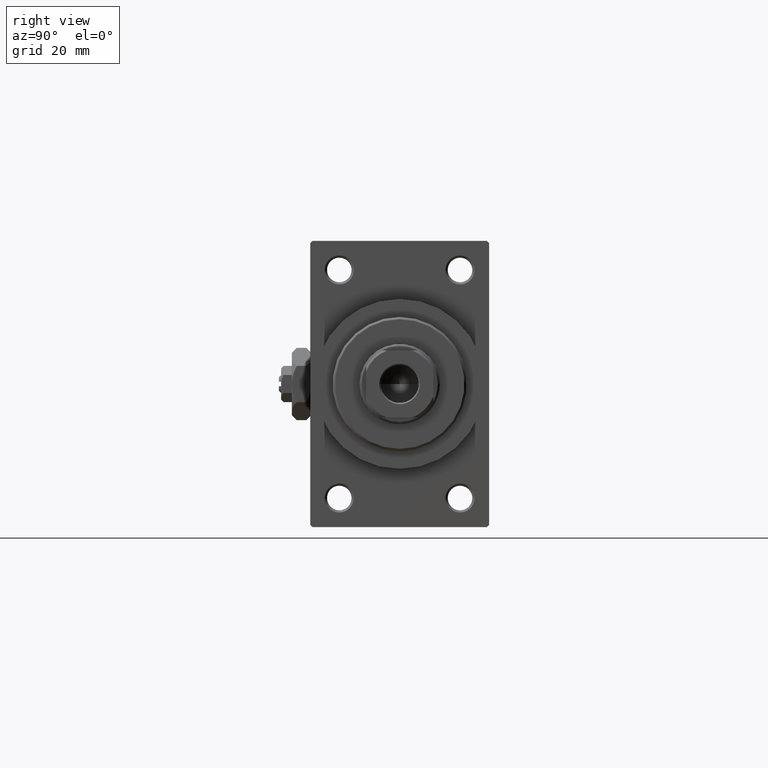
[diagram: clean part render]
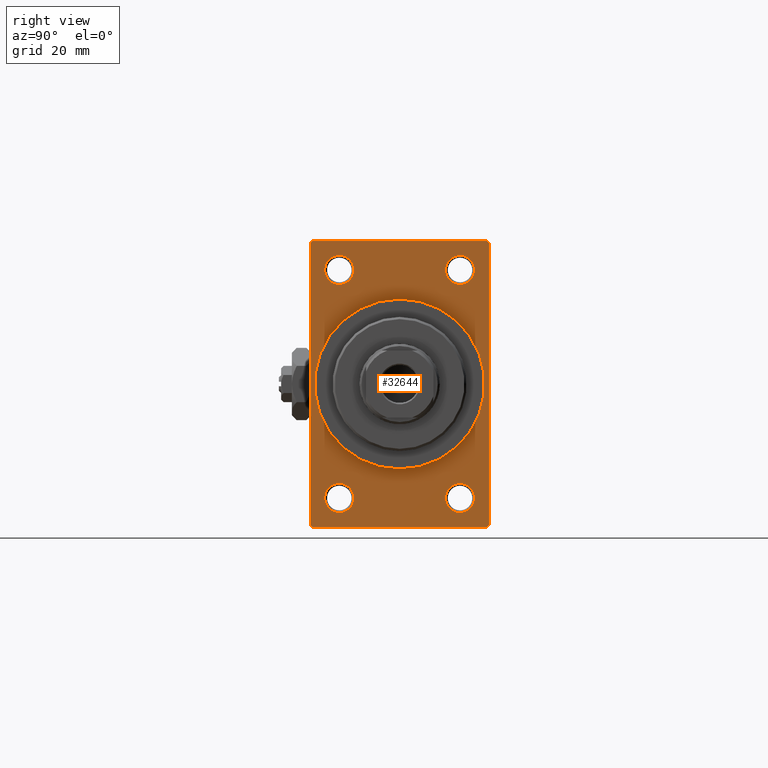
[diagram: same view with one face highlighted and labeled with its STEP entity id]
A machine part, right view. The second image highlights one B-rep face of the part: STEP entity #32644.
In plain terms, the highlighted planar face has unit normal (-1, 0, 0).
Its self-contained STEP definition (entity closure, byte-faithful):
#231 = VERTEX_POINT ( 'NONE', #1908 ) ;
#245 = EDGE_LOOP ( 'NONE', ( #6519, #16043 ) ) ;
#514 = VERTEX_POINT ( 'NONE', #22770 ) ;
#1908 = CARTESIAN_POINT ( 'NONE',  ( 110.0000000000000142, -13.50000000000000178, 28.75000000000001776 ) ) ;
#1947 = CIRCLE ( 'NONE', #15298, 3.250000000000016875 ) ;
#2046 = DIRECTION ( 'NONE',  ( 0.000000000000000000, 0.000000000000000000, -1.000000000000000000 ) ) ;
#2392 = FACE_BOUND ( 'NONE', #21859, .T. ) ;
#2539 = EDGE_CURVE ( 'NONE', #37560, #28028, #23397, .T. ) ;
#2851 = EDGE_CURVE ( 'NONE', #43017, #7897, #36192, .T. ) ;
#3000 = CARTESIAN_POINT ( 'NONE',  ( 110.0000000000000142, 0.000000000000000000, 0.000000000000000000 ) ) ;
#3030 = ORIENTED_EDGE ( 'NONE', *, *, #10251, .F. ) ;
#3662 = VECTOR ( 'NONE', #18837, 1000.000000000000000 ) ;
#3680 = LINE ( 'NONE', #33956, #43767 ) ;
#3965 = CIRCLE ( 'NONE', #29127, 19.00000000000000000 ) ;
#4322 = LINE ( 'NONE', #33860, #3662 ) ;
#5316 = DIRECTION ( 'NONE',  ( 0.000000000000000000, 0.000000000000000000, 1.000000000000000000 ) ) ;
#5517 = EDGE_CURVE ( 'NONE', #37560, #47265, #31719, .T. ) ;
#5570 = AXIS2_PLACEMENT_3D ( 'NONE', #13118, #38984, #32088 ) ;
#5633 = ORIENTED_EDGE ( 'NONE', *, *, #11088, .T. ) ;
#5762 = CIRCLE ( 'NONE', #34821, 3.250000000000016875 ) ;
#5841 = DIRECTION ( 'NONE',  ( -1.000000000000000000, 0.000000000000000000, -0.000000000000000000 ) ) ;
#6111 = CARTESIAN_POINT ( 'NONE',  ( 110.0000000000000142, 13.49999999999999822, 25.50000000000000355 ) ) ;
#6434 = VECTOR ( 'NONE', #32447, 1000.000000000000114 ) ;
#6519 = ORIENTED_EDGE ( 'NONE', *, *, #23527, .T. ) ;
#7897 = VERTEX_POINT ( 'NONE', #36115 ) ;
#7944 = CARTESIAN_POINT ( 'NONE',  ( 110.0000000000000142, 20.00000000000000000, 31.50000000000000000 ) ) ;
#8272 = CARTESIAN_POINT ( 'NONE',  ( 110.0000000000000142, 20.00000000000000000, 32.00000000000000000 ) ) ;
#9033 = FACE_OUTER_BOUND ( 'NONE', #16469, .T. ) ;
#9072 = ORIENTED_EDGE ( 'NONE', *, *, #39389, .T. ) ;
#9545 = DIRECTION ( 'NONE',  ( 0.000000000000000000, 0.000000000000000000, 1.000000000000000000 ) ) ;
#9916 = CARTESIAN_POINT ( 'NONE',  ( 110.0000000000000142, -13.50000000000000533, -25.49999999999999645 ) ) ;
#10221 = CARTESIAN_POINT ( 'NONE',  ( 110.0000000000000142, -13.50000000000000178, 25.50000000000000355 ) ) ;
#10251 = EDGE_CURVE ( 'NONE', #47014, #44035, #3680, .T. ) ;
#10630 = EDGE_CURVE ( 'NONE', #47265, #26166, #45241, .T. ) ;
#10746 = LINE ( 'NONE', #40542, #26668 ) ;
#10807 = CARTESIAN_POINT ( 'NONE',  ( 110.0000000000000142, -20.00000000000000000, 31.99999999999999289 ) ) ;
#10987 = DIRECTION ( 'NONE',  ( -0.000000000000000000, -0.7071067811865474617, -0.7071067811865474617 ) ) ;
#11045 = VECTOR ( 'NONE', #31291, 1000.000000000000000 ) ;
#11088 = EDGE_CURVE ( 'NONE', #47014, #28028, #30874, .T. ) ;
#11251 = AXIS2_PLACEMENT_3D ( 'NONE', #9916, #36486, #25402 ) ;
#11423 = AXIS2_PLACEMENT_3D ( 'NONE', #10221, #24506, #24256 ) ;
#11728 = CARTESIAN_POINT ( 'NONE',  ( 110.0000000000000142, 13.49999999999999822, -25.50000000000000000 ) ) ;
#12033 = DIRECTION ( 'NONE',  ( 0.000000000000000000, -1.000000000000000000, 0.000000000000000000 ) ) ;
#12535 = EDGE_LOOP ( 'NONE', ( #33615, #18592 ) ) ;
#12733 = ORIENTED_EDGE ( 'NONE', *, *, #10630, .T. ) ;
#13118 = CARTESIAN_POINT ( 'NONE',  ( 110.0000000000000142, 13.49999999999999822, -25.50000000000000000 ) ) ;
#13221 = FACE_BOUND ( 'NONE', #12535, .T. ) ;
#13295 = AXIS2_PLACEMENT_3D ( 'NONE', #18986, #26378, #30329 ) ;
#13679 = VERTEX_POINT ( 'NONE', #17061 ) ;
#15298 = AXIS2_PLACEMENT_3D ( 'NONE', #25025, #16688, #9545 ) ;
#15730 = VECTOR ( 'NONE', #32963, 1000.000000000000000 ) ;
#16043 = ORIENTED_EDGE ( 'NONE', *, *, #18728, .T. ) ;
#16431 = CIRCLE ( 'NONE', #34529, 3.249999999999975131 ) ;
#16469 = EDGE_LOOP ( 'NONE', ( #33193, #36794, #3030, #5633, #36542, #24133, #12733, #45152 ) ) ;
#16688 = DIRECTION ( 'NONE',  ( -1.000000000000000000, -0.000000000000000000, -0.000000000000000000 ) ) ;
#16891 = CARTESIAN_POINT ( 'NONE',  ( 110.0000000000000142, 13.49999999999999822, 25.50000000000000355 ) ) ;
#16940 = CIRCLE ( 'NONE', #11423, 3.250000000000016875 ) ;
#17061 = CARTESIAN_POINT ( 'NONE',  ( 110.0000000000000142, -13.50000000000000533, -28.75000000000001066 ) ) ;
#17401 = FACE_BOUND ( 'NONE', #43904, .T. ) ;
#17422 = CARTESIAN_POINT ( 'NONE',  ( 110.0000000000000142, 19.50000000000000000, 32.00000000000000000 ) ) ;
#18101 = ORIENTED_EDGE ( 'NONE', *, *, #32256, .T. ) ;
#18592 = ORIENTED_EDGE ( 'NONE', *, *, #44732, .T. ) ;
#18728 = EDGE_CURVE ( 'NONE', #514, #32941, #16431, .T. ) ;
#18837 = DIRECTION ( 'NONE',  ( 0.000000000000000000, 0.7071067811865524577, -0.7071067811865426878 ) ) ;
#18914 = EDGE_CURVE ( 'NONE', #26166, #31548, #10746, .T. ) ;
#18986 = CARTESIAN_POINT ( 'NONE',  ( 110.0000000000000142, 0.000000000000000000, 0.000000000000000000 ) ) ;
#19199 = EDGE_CURVE ( 'NONE', #31856, #25236, #42417, .T. ) ;
#19214 = CARTESIAN_POINT ( 'NONE',  ( 110.0000000000000142, -13.50000000000000533, -25.49999999999999645 ) ) ;
#19427 = VECTOR ( 'NONE', #23274, 1000.000000000000000 ) ;
#20573 = VERTEX_POINT ( 'NONE', #41733 ) ;
#20844 = PLANE ( 'NONE',  #22280 ) ;
#21352 = DIRECTION ( 'NONE',  ( 0.000000000000000000, 0.000000000000000000, 1.000000000000000000 ) ) ;
#21452 = DIRECTION ( 'NONE',  ( 1.000000000000000000, 0.000000000000000000, 0.000000000000000000 ) ) ;
#21859 = EDGE_LOOP ( 'NONE', ( #9072, #18101 ) ) ;
#22280 = AXIS2_PLACEMENT_3D ( 'NONE', #39578, #5841, #28740 ) ;
#22746 = EDGE_CURVE ( 'NONE', #25236, #31856, #3965, .T. ) ;
#22770 = CARTESIAN_POINT ( 'NONE',  ( 110.0000000000000142, 13.49999999999999822, -22.25000000000002487 ) ) ;
#23274 = DIRECTION ( 'NONE',  ( 0.000000000000000000, -1.000000000000000000, -1.734723475976807094E-16 ) ) ;
#23397 = LINE ( 'NONE', #31051, #11045 ) ;
#23527 = EDGE_CURVE ( 'NONE', #32941, #514, #32320, .T. ) ;
#24133 = ORIENTED_EDGE ( 'NONE', *, *, #5517, .T. ) ;
#24256 = DIRECTION ( 'NONE',  ( 0.000000000000000000, 0.000000000000000000, 1.000000000000000000 ) ) ;
#24506 = DIRECTION ( 'NONE',  ( -1.000000000000000000, -0.000000000000000000, -0.000000000000000000 ) ) ;
#24803 = DIRECTION ( 'NONE',  ( -1.000000000000000000, -0.000000000000000000, -0.000000000000000000 ) ) ;
#25025 = CARTESIAN_POINT ( 'NONE',  ( 110.0000000000000142, -13.50000000000000178, 25.50000000000000355 ) ) ;
#25065 = EDGE_CURVE ( 'NONE', #31548, #47972, #40606, .T. ) ;
#25214 = CARTESIAN_POINT ( 'NONE',  ( 110.0000000000000142, -19.50000000000000000, -32.00000000000000000 ) ) ;
#25232 = EDGE_LOOP ( 'NONE', ( #34258, #29608 ) ) ;
#25236 = VERTEX_POINT ( 'NONE', #43947 ) ;
#25402 = DIRECTION ( 'NONE',  ( 0.000000000000000000, 0.000000000000000000, 1.000000000000000000 ) ) ;
#26055 = ORIENTED_EDGE ( 'NONE', *, *, #22746, .F. ) ;
#26166 = VERTEX_POINT ( 'NONE', #35881 ) ;
#26378 = DIRECTION ( 'NONE',  ( 1.000000000000000000, 0.000000000000000000, 0.000000000000000000 ) ) ;
#26668 = VECTOR ( 'NONE', #10987, 1000.000000000000114 ) ;
#27407 = CARTESIAN_POINT ( 'NONE',  ( 110.0000000000000142, 20.00000000000000000, -31.50000000000001421 ) ) ;
#27758 = FACE_BOUND ( 'NONE', #25232, .T. ) ;
#28028 = VERTEX_POINT ( 'NONE', #43992 ) ;
#28242 = VERTEX_POINT ( 'NONE', #31871 ) ;
#28252 = FACE_BOUND ( 'NONE', #245, .T. ) ;
#28740 = DIRECTION ( 'NONE',  ( -0.000000000000000000, 0.000000000000000000, 1.000000000000000000 ) ) ;
#29127 = AXIS2_PLACEMENT_3D ( 'NONE', #3000, #21452, #2046 ) ;
#29608 = ORIENTED_EDGE ( 'NONE', *, *, #2851, .T. ) ;
#30247 = CARTESIAN_POINT ( 'NONE',  ( 110.0000000000000142, 19.50000000000000000, 32.00000000000000000 ) ) ;
#30329 = DIRECTION ( 'NONE',  ( 0.000000000000000000, 0.000000000000000000, -1.000000000000000000 ) ) ;
#30423 = CARTESIAN_POINT ( 'NONE',  ( 110.0000000000000142, -20.00000000000000000, 31.49999999999997868 ) ) ;
#30874 = LINE ( 'NONE', #27407, #32020 ) ;
#31051 = CARTESIAN_POINT ( 'NONE',  ( 110.0000000000000142, 20.00000000000000000, 32.00000000000000000 ) ) ;
#31291 = DIRECTION ( 'NONE',  ( 0.000000000000000000, 0.000000000000000000, -1.000000000000000000 ) ) ;
#31548 = VERTEX_POINT ( 'NONE', #30423 ) ;
#31719 = LINE ( 'NONE', #17422, #6434 ) ;
#31856 = VERTEX_POINT ( 'NONE', #42170 ) ;
#31871 = CARTESIAN_POINT ( 'NONE',  ( 110.0000000000000142, -13.50000000000000533, -22.24999999999997868 ) ) ;
#32020 = VECTOR ( 'NONE', #46146, 1000.000000000000114 ) ;
#32088 = DIRECTION ( 'NONE',  ( 0.000000000000000000, 0.000000000000000000, 1.000000000000000000 ) ) ;
#32256 = EDGE_CURVE ( 'NONE', #28242, #13679, #35612, .T. ) ;
#32320 = CIRCLE ( 'NONE', #5570, 3.249999999999975131 ) ;
#32447 = DIRECTION ( 'NONE',  ( 0.000000000000000000, -0.7071067811865474617, 0.7071067811865474617 ) ) ;
#32644 = ADVANCED_FACE ( 'NONE', ( #13221, #2392, #28252, #27758, #17401, #9033 ), #20844, .F. ) ;
#32941 = VERTEX_POINT ( 'NONE', #45361 ) ;
#32963 = DIRECTION ( 'NONE',  ( 0.000000000000000000, 0.000000000000000000, -1.000000000000000000 ) ) ;
#33193 = ORIENTED_EDGE ( 'NONE', *, *, #25065, .T. ) ;
#33615 = ORIENTED_EDGE ( 'NONE', *, *, #42831, .T. ) ;
#33860 = CARTESIAN_POINT ( 'NONE',  ( 110.0000000000000142, -19.50000000000000000, -32.00000000000000000 ) ) ;
#33956 = CARTESIAN_POINT ( 'NONE',  ( 110.0000000000000142, 20.00000000000000000, -32.00000000000000000 ) ) ;
#34240 = DIRECTION ( 'NONE',  ( -1.000000000000000000, -0.000000000000000000, -0.000000000000000000 ) ) ;
#34258 = ORIENTED_EDGE ( 'NONE', *, *, #39732, .T. ) ;
#34529 = AXIS2_PLACEMENT_3D ( 'NONE', #11728, #38966, #42678 ) ;
#34821 = AXIS2_PLACEMENT_3D ( 'NONE', #16891, #39058, #5316 ) ;
#35064 = ORIENTED_EDGE ( 'NONE', *, *, #19199, .F. ) ;
#35612 = CIRCLE ( 'NONE', #41928, 3.250000000000016875 ) ;
#35626 = CIRCLE ( 'NONE', #11251, 3.250000000000016875 ) ;
#35881 = CARTESIAN_POINT ( 'NONE',  ( 110.0000000000000142, -19.49999999999998579, 31.99999999999999289 ) ) ;
#36115 = CARTESIAN_POINT ( 'NONE',  ( 110.0000000000000142, 13.49999999999999822, 22.24999999999998934 ) ) ;
#36192 = CIRCLE ( 'NONE', #42511, 3.250000000000016875 ) ;
#36486 = DIRECTION ( 'NONE',  ( -1.000000000000000000, -0.000000000000000000, -0.000000000000000000 ) ) ;
#36542 = ORIENTED_EDGE ( 'NONE', *, *, #2539, .F. ) ;
#36794 = ORIENTED_EDGE ( 'NONE', *, *, #47695, .T. ) ;
#37560 = VERTEX_POINT ( 'NONE', #7944 ) ;
#38409 = CARTESIAN_POINT ( 'NONE',  ( 110.0000000000000142, 19.50000000000001421, -32.00000000000000000 ) ) ;
#38966 = DIRECTION ( 'NONE',  ( -1.000000000000000000, -0.000000000000000000, -0.000000000000000000 ) ) ;
#38984 = DIRECTION ( 'NONE',  ( -1.000000000000000000, -0.000000000000000000, -0.000000000000000000 ) ) ;
#39058 = DIRECTION ( 'NONE',  ( -1.000000000000000000, -0.000000000000000000, -0.000000000000000000 ) ) ;
#39389 = EDGE_CURVE ( 'NONE', #13679, #28242, #35626, .T. ) ;
#39578 = CARTESIAN_POINT ( 'NONE',  ( 110.0000000000000142, 0.000000000000000000, 0.000000000000000000 ) ) ;
#39732 = EDGE_CURVE ( 'NONE', #7897, #43017, #5762, .T. ) ;
#39947 = CARTESIAN_POINT ( 'NONE',  ( 110.0000000000000142, 13.49999999999999822, 28.75000000000002132 ) ) ;
#40542 = CARTESIAN_POINT ( 'NONE',  ( 110.0000000000000142, -20.00000000000000000, 31.49999999999997868 ) ) ;
#40606 = LINE ( 'NONE', #10807, #15730 ) ;
#41733 = CARTESIAN_POINT ( 'NONE',  ( 110.0000000000000142, -13.50000000000000178, 22.24999999999998579 ) ) ;
#41928 = AXIS2_PLACEMENT_3D ( 'NONE', #19214, #34240, #45354 ) ;
#42170 = CARTESIAN_POINT ( 'NONE',  ( 110.0000000000000142, 2.326828918379970970E-15, -19.00000000000000000 ) ) ;
#42417 = CIRCLE ( 'NONE', #13295, 19.00000000000000000 ) ;
#42511 = AXIS2_PLACEMENT_3D ( 'NONE', #6111, #24803, #21352 ) ;
#42678 = DIRECTION ( 'NONE',  ( 0.000000000000000000, 0.000000000000000000, 1.000000000000000000 ) ) ;
#42831 = EDGE_CURVE ( 'NONE', #20573, #231, #1947, .T. ) ;
#43017 = VERTEX_POINT ( 'NONE', #39947 ) ;
#43767 = VECTOR ( 'NONE', #12033, 1000.000000000000000 ) ;
#43904 = EDGE_LOOP ( 'NONE', ( #26055, #35064 ) ) ;
#43947 = CARTESIAN_POINT ( 'NONE',  ( 110.0000000000000142, 0.000000000000000000, 19.00000000000000000 ) ) ;
#43992 = CARTESIAN_POINT ( 'NONE',  ( 110.0000000000000142, 20.00000000000000000, -31.50000000000001421 ) ) ;
#44035 = VERTEX_POINT ( 'NONE', #25214 ) ;
#44732 = EDGE_CURVE ( 'NONE', #231, #20573, #16940, .T. ) ;
#45152 = ORIENTED_EDGE ( 'NONE', *, *, #18914, .T. ) ;
#45241 = LINE ( 'NONE', #8272, #19427 ) ;
#45354 = DIRECTION ( 'NONE',  ( 0.000000000000000000, 0.000000000000000000, 1.000000000000000000 ) ) ;
#45361 = CARTESIAN_POINT ( 'NONE',  ( 110.0000000000000142, 13.49999999999999822, -28.74999999999997513 ) ) ;
#46146 = DIRECTION ( 'NONE',  ( -0.000000000000000000, 0.7071067811865474617, 0.7071067811865474617 ) ) ;
#47014 = VERTEX_POINT ( 'NONE', #38409 ) ;
#47265 = VERTEX_POINT ( 'NONE', #30247 ) ;
#47521 = CARTESIAN_POINT ( 'NONE',  ( 110.0000000000000142, -20.00000000000000000, -31.50000000000000711 ) ) ;
#47695 = EDGE_CURVE ( 'NONE', #47972, #44035, #4322, .T. ) ;
#47972 = VERTEX_POINT ( 'NONE', #47521 ) ;